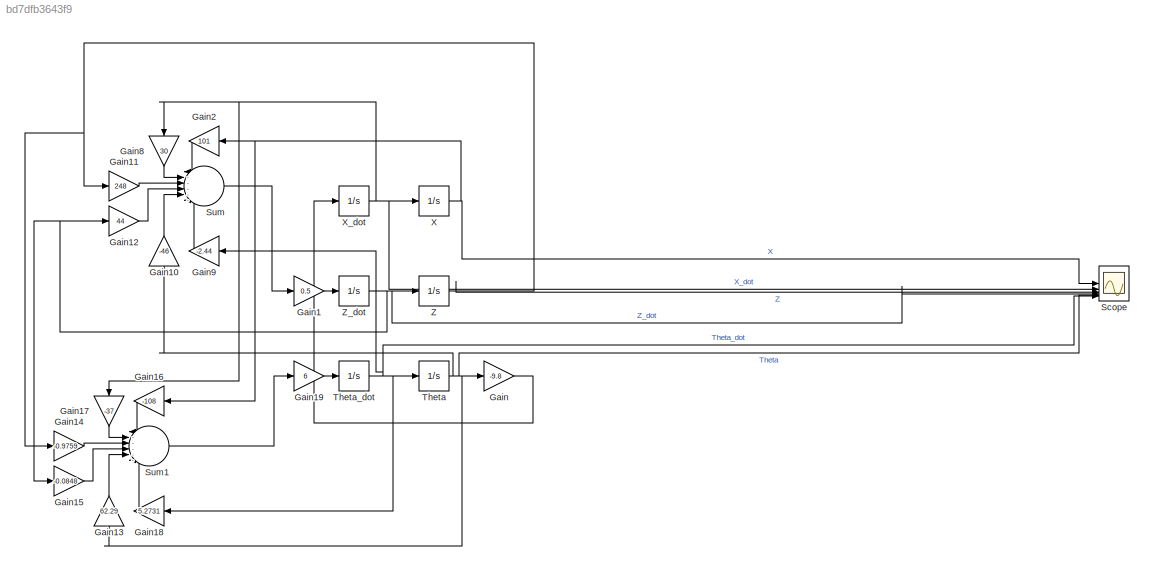
MODEL slx_bd7dfb3643f9
KIND model
CONFIG AbsTol = auto
CONFIG EnableMultiTasking = off
CONFIG FixedStep = auto
CONFIG MaxStep = 0.001
CONFIG MinStep = auto
CONFIG RelTol = 1e-3
CONFIG SampleTimeConstraint = Unconstrained
CONFIG SolverName = VariableStepAuto
CONFIG StartTime = 0.0
CONFIG StopTime = 10.0
BLOCK [Gain] Gain
  Gain = -9.8
BLOCK [Gain] Gain1
  Gain = 0.5
BLOCK [Gain] Gain10
  Gain = -46
  NameLocation = right
BLOCK [Gain] Gain11
  Gain = 248
BLOCK [Gain] Gain12
  Gain = 44
BLOCK [Gain] Gain13
  Gain = 62.29
  NameLocation = right
BLOCK [Gain] Gain14
  Gain = -0.9759
BLOCK [Gain] Gain15
  Gain = -0.0848
BLOCK [Gain] Gain16
  Gain = -108
  NameLocation = top
BLOCK [Gain] Gain17
  Gain = -37
  NameLocation = left
BLOCK [Gain] Gain18
  Gain = 5.2731
  NameLocation = top
BLOCK [Gain] Gain19
  Gain = 6
BLOCK [Gain] Gain2
  Gain = 101
  NameLocation = top
BLOCK [Gain] Gain8
  Gain = 30
  NameLocation = left
BLOCK [Gain] Gain9
  Gain = -2.44
  NameLocation = top
BLOCK [Scope] Scope
  Floating = off
  NumInputPorts = 6
  ScopeSpecificationString = Simulink.scopes.TimeScopeBlockCfg('CurrentConfiguration', extmgr.ConfigurationSet(extmgr.Configuration('Core','General UI',true),extmgr.Configuration('Core','Source UI',true),extmgr.Configuration('Sources','WiredSimulink',true),extmgr.Configuration('Visuals','Time Domain',true,'SerializedDisplays',{struct('MinYLimReal','-6.0657','MaxYLimReal','2.04004','YLabelReal','','MinYLimMag','0.00000','MaxYL...<+1545ch>
BLOCK [Sum] Sum
  Inputs = |------
BLOCK [Sum] Sum1
  Inputs = |------
BLOCK [Integrator] Theta
  InitialCondition = pi/6
BLOCK [Integrator] Theta_dot
BLOCK [Integrator] X
BLOCK [Integrator] X_dot
BLOCK [Integrator] Z
  InitialCondition = 1
BLOCK [Integrator] Z_dot
LINE Gain10:1 -> Sum:5
LINE Gain11:1 -> Sum:3
LINE Gain12:1 -> Sum:4
LINE Gain13:1 -> Sum1:5
LINE Gain14:1 -> Sum1:3
LINE Gain15:1 -> Sum1:4
LINE Gain16:1 -> Sum1:1
LINE Gain17:1 -> Sum1:2
LINE Gain18:1 -> Sum1:6
LINE Gain19:1 -> Theta_dot:1
LINE Gain1:1 -> Z_dot:1
LINE Gain2:1 -> Sum:1
LINE Gain8:1 -> Sum:2
LINE Gain9:1 -> Sum:6
LINE Gain:1 -> X_dot:1
LINE Sum1:1 -> Gain19:1
LINE Sum:1 -> Gain1:1
NET Theta:1 -> Gain10:1, Gain13:1, Gain:1, Scope:5
NET Theta_dot:1 -> Gain18:1, Gain9:1, Scope:6, Theta:1
NET X:1 -> Gain16:1, Gain2:1, Scope:1
NET X_dot:1 -> Gain17:1, Gain8:1, Scope:2, X:1
NET Z:1 -> Gain11:1, Gain14:1, Scope:3
NET Z_dot:1 -> Gain12:1, Gain15:1, Scope:4, Z:1
note: NET lines group one-source signal fan-out (src -> all destinations, sorted); 1:1 wires keep LINE
